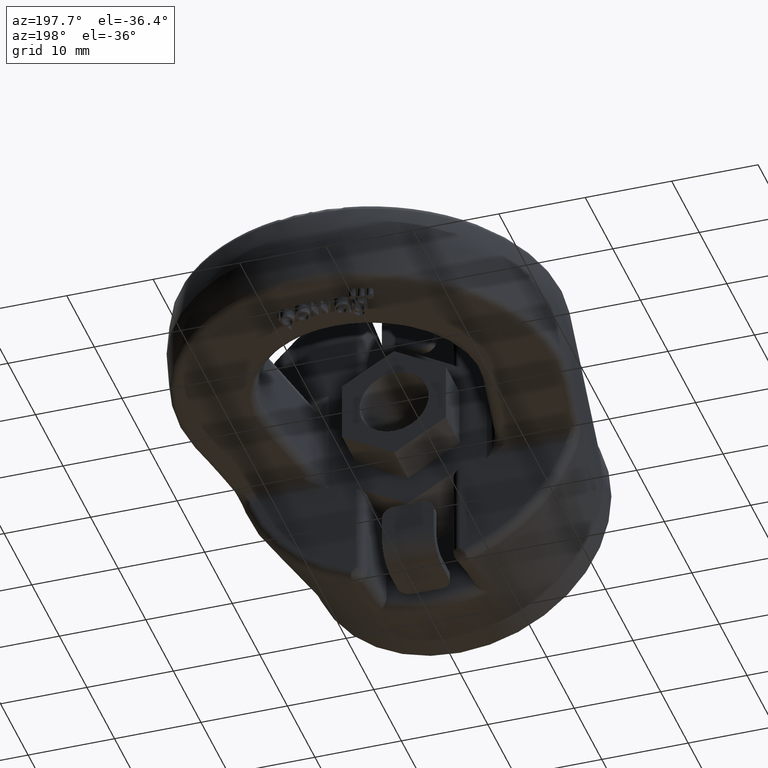
[diagram: clean part render]
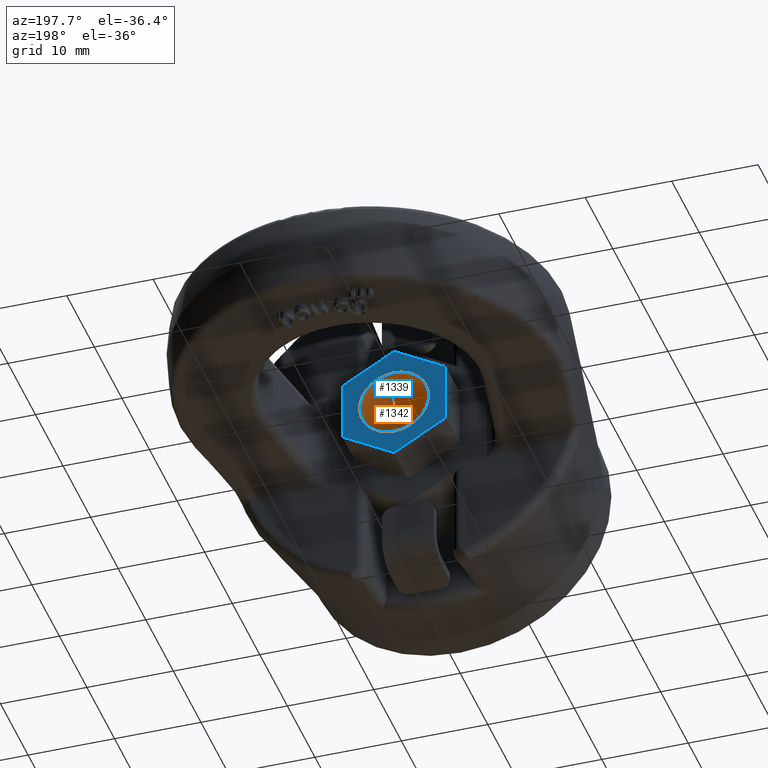
[diagram: same view with the hole feature highlighted: cylindrical wall and planar end face, labeled with their STEP entity ids]
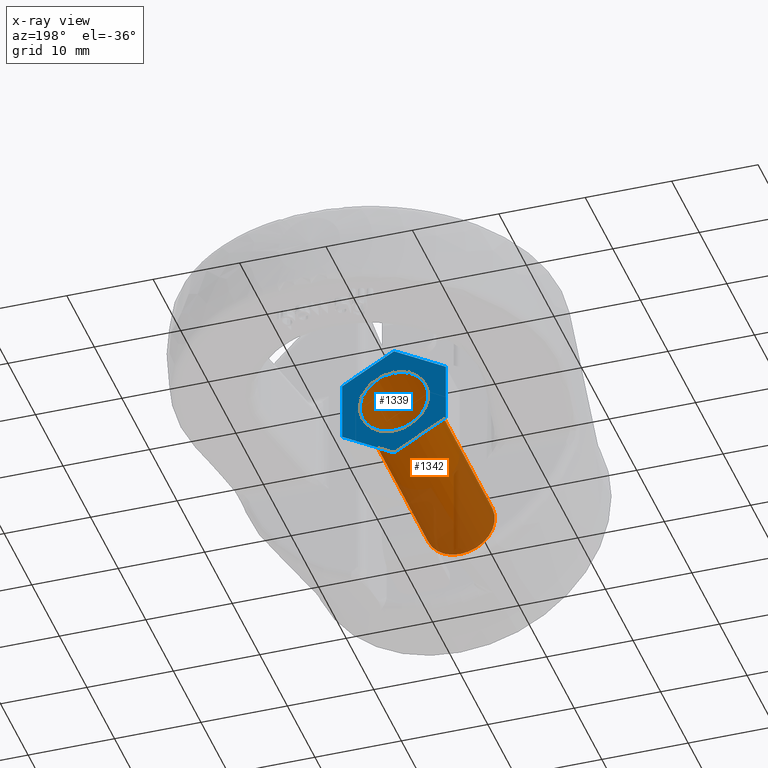
[diagram: x-ray of the same camera — body ghosted, the hole faces saturated]
A machine part, auxiliary view. The highlighted faces form one hole feature of diameter 8 mm: the cylindrical wall (entity #1342, orange) and its adjacent planar end face (entity #1339, blue) — they share a circular edge in the B-rep.
The next image is the same camera in x-ray (body ghosted, the hole faces saturated) — the bore reads through the body.
Wall:
#1070=CYLINDRICAL_SURFACE('',#5152,4.);
#1342=ADVANCED_FACE('',(#1789,#1790),#1070,.F.);
#1699=CIRCLE('',#5138,4.);
#1701=CIRCLE('',#5146,4.);
#1789=FACE_BOUND('',#1860,.T.);
#1790=FACE_BOUND('',#1861,.T.);
#1860=EDGE_LOOP('',(#2874));
#1861=EDGE_LOOP('',(#2875));
#2874=ORIENTED_EDGE('',*,*,#4398,.F.);
#2875=ORIENTED_EDGE('',*,*,#4387,.F.);
#3997=VERTEX_POINT('',#6888);
#4004=VERTEX_POINT('',#6912);
#4387=EDGE_CURVE('',#3997,#3997,#1699,.T.);
#4398=EDGE_CURVE('',#4004,#4004,#1701,.T.);
#5138=AXIS2_PLACEMENT_3D('',#6887,#5514,#5515);
#5146=AXIS2_PLACEMENT_3D('',#6911,#5539,#5540);
#5152=AXIS2_PLACEMENT_3D('',#6922,#5554,#5555);
#5514=DIRECTION('',(0.,1.,0.));
#5515=DIRECTION('',(0.,0.,1.));
#5539=DIRECTION('',(0.,-1.,0.));
#5540=DIRECTION('',(0.,0.,-1.));
#5554=DIRECTION('',(0.,-1.,0.));
#5555=DIRECTION('',(0.,0.,-1.));
#6887=CARTESIAN_POINT('',(0.,0.,0.));
#6888=CARTESIAN_POINT('',(0.,0.,4.));
#6911=CARTESIAN_POINT('',(0.,24.,0.));
#6912=CARTESIAN_POINT('',(0.,24.,-4.));
#6922=CARTESIAN_POINT('',(0.,24.,0.));
End face:
#1339=ADVANCED_FACE('',(#1787,#1788),#1575,.T.);
#1575=PLANE('',#5147);
#1701=CIRCLE('',#5146,4.);
#1787=FACE_BOUND('',#1856,.T.);
#1788=FACE_BOUND('',#1857,.T.);
#1856=EDGE_LOOP('',(#2857));
#1857=EDGE_LOOP('',(#2858,#2859,#2860,#2861,#2862,#2863));
#2167=LINE('',#6893,#2437);
#2171=LINE('',#6901,#2441);
#2173=LINE('',#6905,#2443);
#2175=LINE('',#6909,#2445);
#2176=LINE('',#6913,#2446);
#2177=LINE('',#6915,#2447);
#2437=VECTOR('',#5522,1.);
#2441=VECTOR('',#5528,1.);
#2443=VECTOR('',#5532,1.);
#2445=VECTOR('',#5536,1.);
#2446=VECTOR('',#5541,1.);
#2447=VECTOR('',#5542,1.);
#2857=ORIENTED_EDGE('',*,*,#4398,.T.);
#2858=ORIENTED_EDGE('',*,*,#4399,.T.);
#2859=ORIENTED_EDGE('',*,*,#4389,.T.);
#2860=ORIENTED_EDGE('',*,*,#4393,.T.);
#2861=ORIENTED_EDGE('',*,*,#4395,.T.);
#2862=ORIENTED_EDGE('',*,*,#4397,.T.);
#2863=ORIENTED_EDGE('',*,*,#4400,.T.);
#3999=VERTEX_POINT('',#6894);
#4000=VERTEX_POINT('',#6895);
#4001=VERTEX_POINT('',#6900);
#4002=VERTEX_POINT('',#6904);
#4003=VERTEX_POINT('',#6908);
#4004=VERTEX_POINT('',#6912);
#4005=VERTEX_POINT('',#6914);
#4389=EDGE_CURVE('',#3999,#4000,#2167,.T.);
#4393=EDGE_CURVE('',#4000,#4001,#2171,.T.);
#4395=EDGE_CURVE('',#4001,#4002,#2173,.T.);
#4397=EDGE_CURVE('',#4002,#4003,#2175,.T.);
#4398=EDGE_CURVE('',#4004,#4004,#1701,.T.);
#4399=EDGE_CURVE('',#4005,#3999,#2176,.T.);
#4400=EDGE_CURVE('',#4003,#4005,#2177,.T.);
#5146=AXIS2_PLACEMENT_3D('',#6911,#5539,#5540);
#5147=AXIS2_PLACEMENT_3D('',#6916,#5543,#5544);
#5522=DIRECTION('',(0.,0.,1.));
#5528=DIRECTION('',(0.86602540378444,0.,0.499999999999998));
#5532=DIRECTION('',(0.86602540378444,0.,-0.499999999999998));
#5536=DIRECTION('',(0.,0.,-1.));
#5539=DIRECTION('',(0.,-1.,0.));
#5540=DIRECTION('',(0.,0.,-1.));
#5541=DIRECTION('',(-0.866025403784441,0.,0.499999999999996));
#5542=DIRECTION('',(-0.866025403784438,0.,-0.5));
#5543=DIRECTION('',(0.,1.,0.));
#5544=DIRECTION('',(0.,0.,1.));
#6893=CARTESIAN_POINT('',(-6.,24.,-3.46410161513775));
#6894=CARTESIAN_POINT('',(-5.99999999999999,24.,-3.46410161513776));
#6895=CARTESIAN_POINT('',(-6.,24.,3.46410161513775));
#6900=CARTESIAN_POINT('',(-8.67361737988404E-16,24.,6.92820323027549));
#6901=CARTESIAN_POINT('',(-6.,24.,3.46410161513775));
#6904=CARTESIAN_POINT('',(6.,24.,3.46410161513775));
#6905=CARTESIAN_POINT('',(0.,24.,6.92820323027549));
#6908=CARTESIAN_POINT('',(6.00000000000001,24.,-3.46410161513774));
#6909=CARTESIAN_POINT('',(6.,24.,3.46410161513775));
#6911=CARTESIAN_POINT('',(0.,24.,0.));
#6912=CARTESIAN_POINT('',(0.,24.,-4.));
#6913=CARTESIAN_POINT('',(1.62321616820484E-14,24.,-6.92820323027549));
#6914=CARTESIAN_POINT('',(1.70995234200368E-14,24.,-6.92820323027549));
#6915=CARTESIAN_POINT('',(6.00000000000001,24.,-3.46410161513774));
#6916=CARTESIAN_POINT('',(0.,24.,0.));